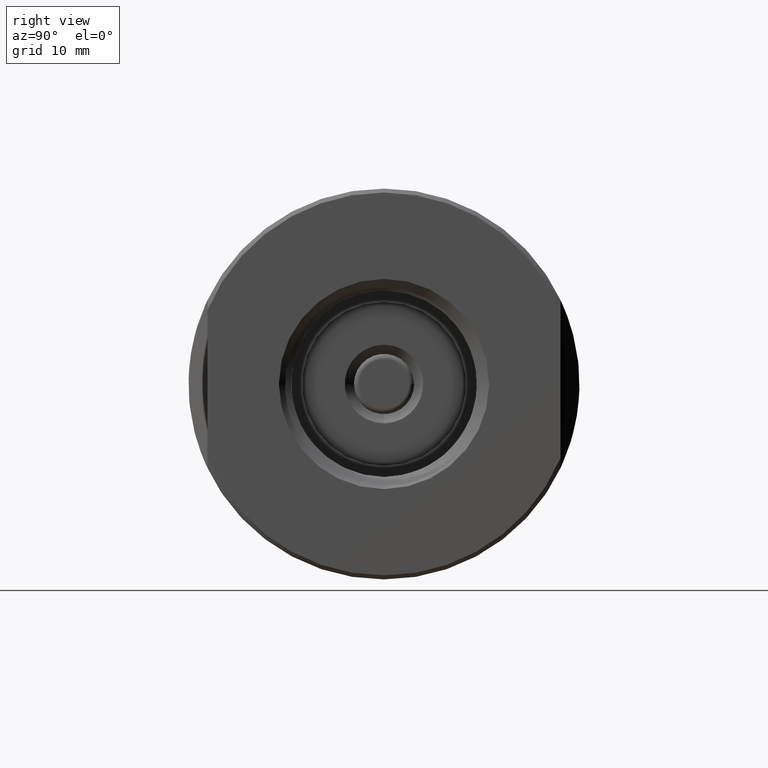
[diagram: clean part render]
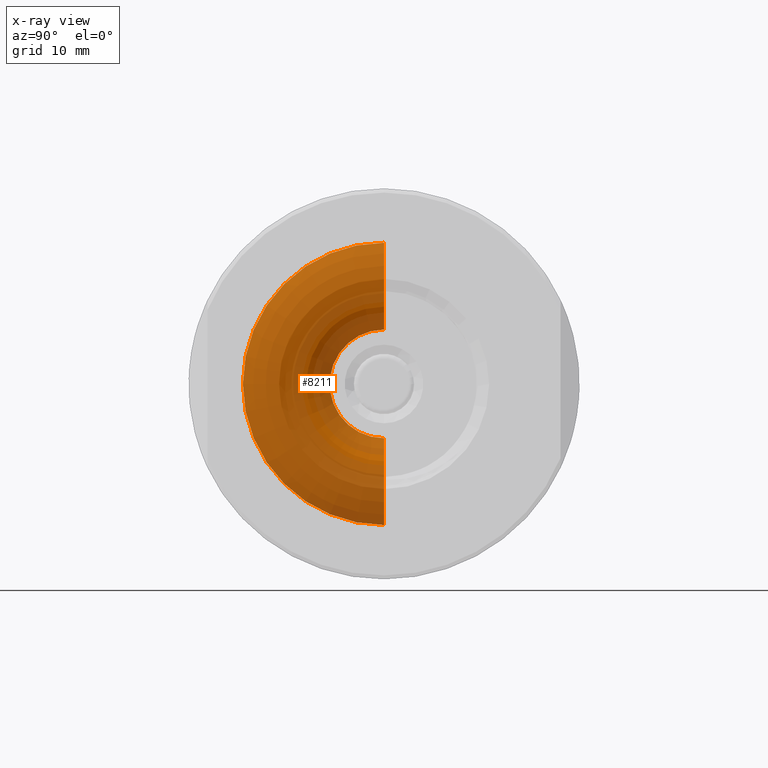
[diagram: x-ray — body ghosted, one internal face saturated and labeled with its STEP entity id]
A machine part, right view, then the same camera in x-ray: the body is ghosted and one INTERNAL B-rep face — a face not visible from any outside direction — is saturated and labeled: STEP entity #8211.
In plain terms, the highlighted toroidal blend (fillet) surface has major radius 12.3063 mm and minor (blend) radius 7.4295 mm.
Its self-contained STEP definition (entity closure, byte-faithful):
#316 = CARTESIAN_POINT ( 'NONE',  ( 0.1869999999999999440, 8.567207022147737491E-17, -0.6995655423353541735 ) ) ;
#489 = ORIENTED_EDGE ( 'NONE', *, *, #7218, .F. ) ;
#608 = CARTESIAN_POINT ( 'NONE',  ( 0.1869999999999998885, 5.933413741868926093E-17, -0.2694344576646456879 ) ) ;
#1157 = CARTESIAN_POINT ( 'NONE',  ( -0.01124999999999998224, 5.933413741868926093E-17, -0.4844999999999999862 ) ) ;
#1252 = TOROIDAL_SURFACE ( 'NONE', #7446, 0.4844999999999999862, 0.2925000000000000377 ) ;
#1388 = ORIENTED_EDGE ( 'NONE', *, *, #2379, .T. ) ;
#1392 = AXIS2_PLACEMENT_3D ( 'NONE', #11220, #8910, #4820 ) ;
#1882 = VERTEX_POINT ( 'NONE', #608 ) ;
#1927 = EDGE_CURVE ( 'NONE', #1882, #5604, #8545, .T. ) ;
#2321 = DIRECTION ( 'NONE',  ( 0.0000000000000000000, -1.224646799147353207E-16, 1.000000000000000000 ) ) ;
#2379 = EDGE_CURVE ( 'NONE', #8617, #3517, #5817, .T. ) ;
#3210 = FACE_OUTER_BOUND ( 'NONE', #12818, .T. ) ;
#3517 = VERTEX_POINT ( 'NONE', #5212 ) ;
#3849 = ORIENTED_EDGE ( 'NONE', *, *, #1927, .F. ) ;
#3973 = DIRECTION ( 'NONE',  ( 0.0000000000000000000, 0.0000000000000000000, 1.000000000000000000 ) ) ;
#4552 = CIRCLE ( 'NONE', #8977, 0.2925000000000000377 ) ;
#4820 = DIRECTION ( 'NONE',  ( 0.0000000000000000000, 0.0000000000000000000, 1.000000000000000000 ) ) ;
#5212 = CARTESIAN_POINT ( 'NONE',  ( 0.1869999999999999440, 0.0000000000000000000, 0.6995655423353541735 ) ) ;
#5436 = DIRECTION ( 'NONE',  ( -0.0000000000000000000, 1.000000000000000000, 1.224646799147353207E-16 ) ) ;
#5604 = VERTEX_POINT ( 'NONE', #13017 ) ;
#5817 = CIRCLE ( 'NONE', #13587, 0.6995655423353541735 ) ;
#5875 = ORIENTED_EDGE ( 'NONE', *, *, #11299, .T. ) ;
#6398 = CARTESIAN_POINT ( 'NONE',  ( -0.01124999999999998224, 0.0000000000000000000, 0.0000000000000000000 ) ) ;
#6786 = DIRECTION ( 'NONE',  ( 0.0000000000000000000, 0.0000000000000000000, 1.000000000000000000 ) ) ;
#7218 = EDGE_CURVE ( 'NONE', #5604, #3517, #4552, .T. ) ;
#7446 = AXIS2_PLACEMENT_3D ( 'NONE', #6398, #9246, #3973 ) ;
#7893 = CARTESIAN_POINT ( 'NONE',  ( 0.1869999999999999440, 0.0000000000000000000, 0.0000000000000000000 ) ) ;
#7932 = CARTESIAN_POINT ( 'NONE',  ( -0.01124999999999998224, 0.0000000000000000000, 0.4844999999999999862 ) ) ;
#8211 = ADVANCED_FACE ( 'NONE', ( #3210 ), #1252, .F. ) ;
#8545 = CIRCLE ( 'NONE', #1392, 0.2694344576646456879 ) ;
#8617 = VERTEX_POINT ( 'NONE', #316 ) ;
#8910 = DIRECTION ( 'NONE',  ( -1.000000000000000000, -0.0000000000000000000, -0.0000000000000000000 ) ) ;
#8977 = AXIS2_PLACEMENT_3D ( 'NONE', #7932, #10086, #11137 ) ;
#9005 = CIRCLE ( 'NONE', #11007, 0.2925000000000000377 ) ;
#9246 = DIRECTION ( 'NONE',  ( -1.000000000000000000, -0.0000000000000000000, -0.0000000000000000000 ) ) ;
#9766 = DIRECTION ( 'NONE',  ( -1.000000000000000000, -0.0000000000000000000, -0.0000000000000000000 ) ) ;
#10086 = DIRECTION ( 'NONE',  ( 0.0000000000000000000, -1.000000000000000000, 0.0000000000000000000 ) ) ;
#11007 = AXIS2_PLACEMENT_3D ( 'NONE', #1157, #5436, #2321 ) ;
#11137 = DIRECTION ( 'NONE',  ( 0.0000000000000000000, 0.0000000000000000000, -1.000000000000000000 ) ) ;
#11220 = CARTESIAN_POINT ( 'NONE',  ( 0.1869999999999998885, 0.0000000000000000000, 0.0000000000000000000 ) ) ;
#11299 = EDGE_CURVE ( 'NONE', #1882, #8617, #9005, .T. ) ;
#12818 = EDGE_LOOP ( 'NONE', ( #3849, #5875, #1388, #489 ) ) ;
#13017 = CARTESIAN_POINT ( 'NONE',  ( 0.1869999999999998885, 0.0000000000000000000, 0.2694344576646456879 ) ) ;
#13587 = AXIS2_PLACEMENT_3D ( 'NONE', #7893, #9766, #6786 ) ;